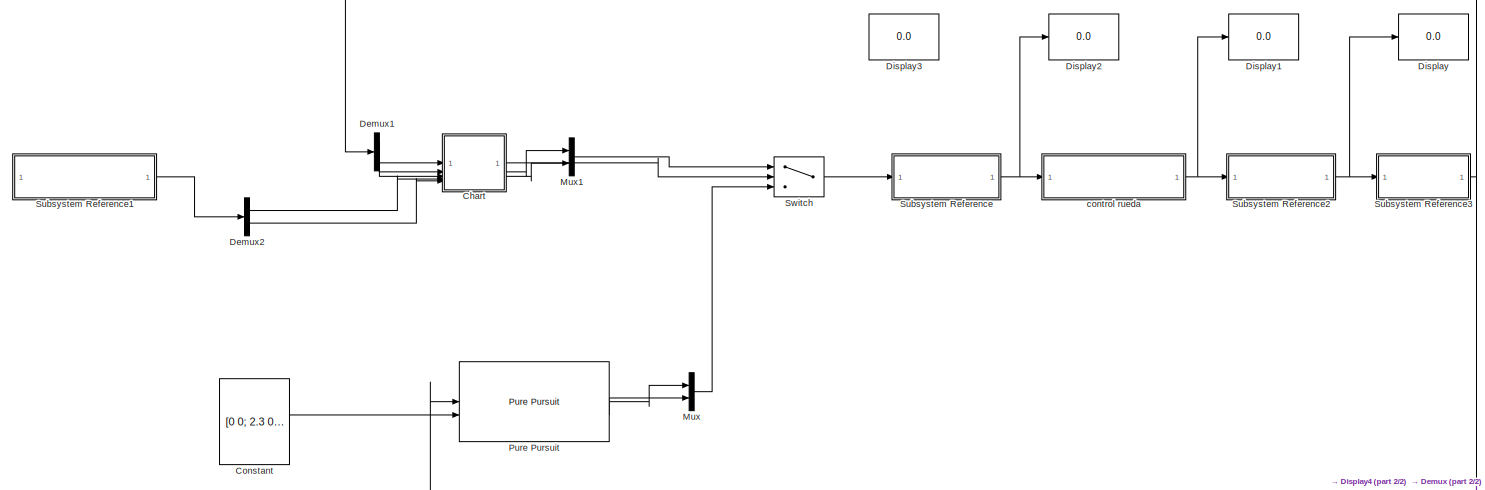
[diagram: root canvas - part 1/2, full width, middle band]
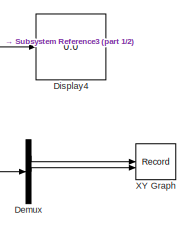
[diagram: root canvas - part 2/2, bottom right region]
MODEL slx_ad350e828cba
KIND model
CONFIG AbsTol = auto
CONFIG EnableMultiTasking = on
CONFIG FixedStep = auto
CONFIG MaxStep = auto
CONFIG MinStep = auto
CONFIG RelTol = 1e-3
CONFIG SampleTimeConstraint = Unconstrained
CONFIG SolverName = FixedStepAuto
CONFIG StartTime = 0.0
CONFIG StopTime = 150
WORKSPACE source: mxarray member
WORKSPACE d = 0.2
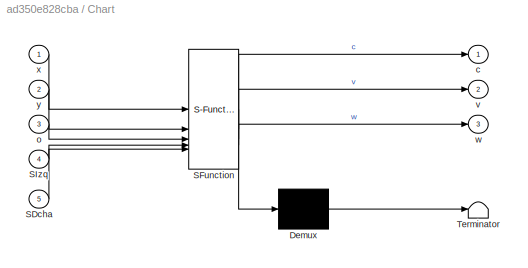
BLOCK [SubSystem] Chart
  ErrorFcn = Stateflow.Translate.translate
  PermitHierarchicalResolution = ExplicitOnly
  PortSchema = {"entries":[{"content":{"sides":[{"content":{"connectorIds":["In1","In2","In3","In4","In5"]},"type":"ConnectorPlacement.EquallySpacedRectSide","uuid":"7ea75e02-7eaf-458f-aa78-9840c586c160"},{"content":{"connectorIds":["Out2","Out3","Out1"],"side":"RIGHT"},"type":"ConnectorPlacement.EquallySpacedRectSide","uuid":"35fe63f6-42d6-4818-97d9-38ac2ccf4782"},{"content":{"side":"TOP"},"type":"ConnectorPlac...<+386ch>
  SFBlockType = Chart
  TreatAsAtomicUnit = on
BLOCK [Demux] Chart/ Demux 
  Outputs = 1
BLOCK [S-Function] Chart/ SFunction 
  EnableBusSupport = on
  FunctionName = sf_sfun
  PortCounts = [5 4]
  SFcnIsStateOwnerBlock = off
  SFunctionDeploymentMode = off
  Tag = Stateflow S-Function 3
BLOCK [Terminator] Chart/ Terminator 
BLOCK [Inport] Chart/SDcha
  Port = 5
BLOCK [Inport] Chart/SIzq
  Port = 4
BLOCK [Outport] Chart/c
BLOCK [Inport] Chart/o
  Port = 3
BLOCK [Outport] Chart/v
  Port = 2
BLOCK [Outport] Chart/w
  Port = 3
BLOCK [Inport] Chart/x
BLOCK [Inport] Chart/y
  Port = 2
BLOCK [Constant] Constant
  Value = [0 0; 2.3 0; 2.5 7.8; 3.8 7.8; 4 14; 3.8 14]
BLOCK [Demux] Demux
  Outputs = 3
BLOCK [Demux] Demux1
  Outputs = 3
BLOCK [Demux] Demux2
  Outputs = 2
BLOCK [Display] Display
  Decimation = 1
BLOCK [Display] Display1
  Decimation = 1
BLOCK [Display] Display2
  Decimation = 1
BLOCK [Display] Display3
  Decimation = 1
BLOCK [Display] Display4
  Decimation = 1
BLOCK [Mux] Mux
  DisplayOption = bar
  Inputs = 2
BLOCK [Mux] Mux1
  DisplayOption = bar
  Inputs = 2
BLOCK [Reference] Pure Pursuit  REF=robotalgslib/Pure Pursuit
  LibrarySourceBlock = robotmobilelib/Pure Pursuit
  SourceBlock = robotalgslib/Pure Pursuit
  SourceType = nav.slalgs.internal.PurePursuit
BLOCK [SubSystem] Subsystem Reference
  ReferencedSubsystem = MCI
BLOCK [SubSystem] Subsystem Reference1
  ReferencedSubsystem = Sensor
BLOCK [SubSystem] Subsystem Reference2
  ReferencedSubsystem = MCD
BLOCK [SubSystem] Subsystem Reference3
  ReferencedSubsystem = Odometria
BLOCK [Switch] Switch
  Criteria = u2 > Threshold
  InputSameDT = off
  SaturateOnIntegerOverflow = off
BLOCK [Record] XY Graph
  CompatibilityTag = XY
  FileSettingsInternal = {"entries":[{"content":{"excelSettings":{"content":{},"type":"Streamout.ExcelSettings"}},"type":"Streamout.FileSettingStorage","uuid":""}],"packageUris":["http:\/\/schema.mathworks.com\/mf0\/streamout_blocks\/R2020a"],"version":"1.0"}
  Layout = [1 1]
  SignalsInternal = {"entries":[{"content":{"signals":[{"content":{"blockPath":[],"dimensions":[1],"domain":"","lineColor":"#a2142f","plots":[ 1 ],"port":1,"sid":["21"],"signalID":1,"signalName":"Demux:1"},"type":"RecordBlkView.Signal","uuid":""},{"content":{"blockPath":[],"dimensions":[1],"domain":"","lineColor":"#139fff","plots":[ 1 ],"port":2,"sid":["21"],"signalID":2,"signalName":"Demux:2"},"type":"RecordBlkView....<+164ch>
  VisualizationBindings = {"xyplotplugin":{"info":[{"series":[{"bindingParametersList":[{"parameter":"X-Axis","signalID":1,"signalName":"Demux:1"},{"parameter":"Y-Axis","signalID":2,"signalName":"Demux:2"}],"seriesID":0}],"subplotID":1}]}}
BLOCK [SubSystem] control rueda
  ReferencedSubsystem = PieroControladoV
LINE Chart:1 -> Switch:2
LINE Chart:2 -> Mux1:1
LINE Chart:3 -> Mux1:2
LINE Constant:1 -> Pure Pursuit:2
LINE Demux1:1 -> Chart:1
LINE Demux1:2 -> Chart:2
LINE Demux1:3 -> Chart:3
LINE Demux2:1 -> Chart:4
LINE Demux2:2 -> Chart:5
LINE Demux:1 -> XY Graph:1
LINE Demux:2 -> XY Graph:2
LINE Mux1:1 -> Switch:1
LINE Mux:1 -> Switch:3
LINE Pure Pursuit:1 -> Mux:1
LINE Pure Pursuit:2 -> Mux:2
LINE Subsystem Reference1:1 -> Demux2:1
NET Subsystem Reference2:1 -> Display:1, Subsystem Reference3:1
NET Subsystem Reference3:1 -> Demux1:1, Demux:1, Display4:1, Pure Pursuit:1
NET Subsystem Reference:1 -> Display2:1, control rueda:1
LINE Switch:1 -> Subsystem Reference:1
NET control rueda:1 -> Display1:1, Subsystem Reference2:1
note: NET lines group one-source signal fan-out (src -> all destinations, sorted); 1:1 wires keep LINE
CHART Chart states=5 transitions=9
  STATE_LABEL 'Inicio\nv=0;\nw=0;\nc=0;'
  STATE_LABEL 'SinObstaculos\nentry:\nv=0;\nw=0;\nc=0;'
  STATE_LABEL 'ObstaculoIzq\nentry:\nv=0.1;\nw=-pi/4;\nc=1;'
  STATE_LABEL 'ObstaculoDcha\nentry:\nv=0.1;\nw=pi/4;\nc=1;'
  STATE_LABEL 'ObstaculoFrente\nentry:\nv=0;\nw=pi/2;\nc=1;'
CHART  states=0 transitions=0
